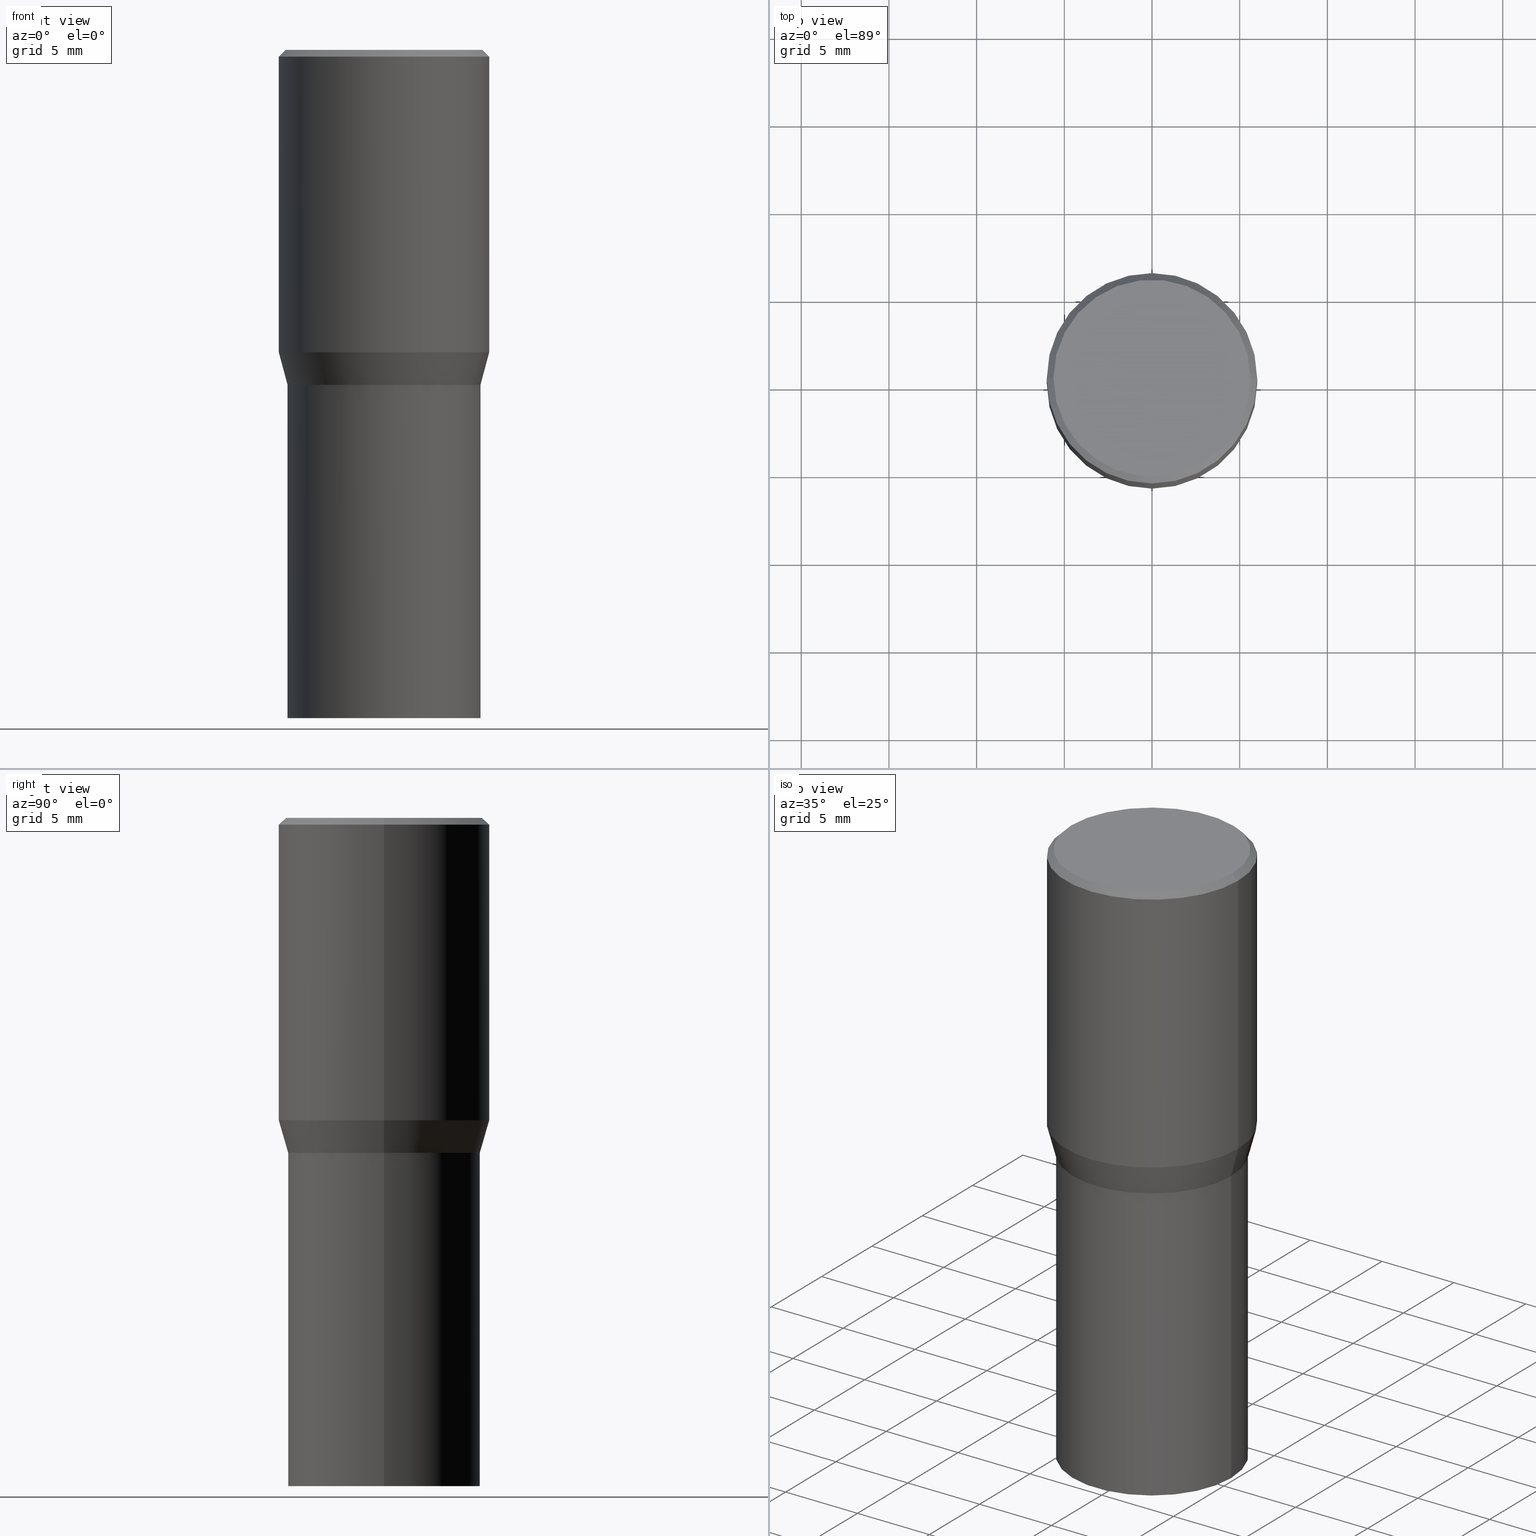
[diagram: canonical four-view strip — front | top / right | iso, engineering-drawing reading convention]
A machine part, canonical four-view strip (front | top / right | iso — engineering-drawing reading convention). The complete STEP part file that produces these views, byte-faithful:
ISO-10303-21;
HEADER;
FILE_DESCRIPTION (( 'STEP AP203' ),
    '1' );
FILE_NAME ('49318.STEP',
    '2024-03-12T20:13:07',
    ( '' ),
    ( '' ),
    'SwSTEP 2.0',
    'SolidWorks 2023',
    '' );
FILE_SCHEMA (( 'CONFIG_CONTROL_DESIGN' ));
ENDSEC;

DATA;
#1 = PRODUCT_DEFINITION ( 'UNKNOWN', '', #314, #178 ) ;
#2 = ORIENTED_EDGE ( 'NONE', *, *, #228, .T. ) ;
#3 = EDGE_CURVE ( 'NONE', #387, #332, #211, .T. ) ;
#4 = CARTESIAN_POINT ( 'NONE',  ( 0.2165500000000000203, -4.137754534663007109E-15, -0.7520000000000001128 ) ) ;
#5 = APPROVAL_PERSON_ORGANIZATION ( #142, #248, #191 ) ;
#6 = ORIENTED_EDGE ( 'NONE', *, *, #342, .T. ) ;
#7 = CARTESIAN_POINT ( 'NONE',  ( 1.838992542251222532E-29, -2.625593966810045103E-15, -0.7519999999999998908 ) ) ;
#8 = CARTESIAN_POINT ( 'NONE',  ( 1.659654580432621677E-29, -2.369546886817807077E-15, -0.6786652016312719748 ) ) ;
#9 = CYLINDRICAL_SURFACE ( 'NONE', #245, 0.2361999999999999933 ) ;
#10 = EDGE_CURVE ( 'NONE', #214, #246, #219, .T. ) ;
#11 = DIRECTION ( 'NONE',  ( 1.000000000000000000, -6.982962677686266711E-15, 0.000000000000000000 ) ) ;
#12 = ORIENTED_EDGE ( 'NONE', *, *, #47, .T. ) ;
#13 = DIRECTION ( 'NONE',  ( -2.445468806185136597E-29, 3.491481338843145583E-15, 1.000000000000000000 ) ) ;
#14 = DIRECTION ( 'NONE',  ( -2.445468806185136597E-29, 3.491481338843145583E-15, 1.000000000000000000 ) ) ;
#15 = VECTOR ( 'NONE', #172, 39.37007874015748143 ) ;
#16 = DIRECTION ( 'NONE',  ( -2.445468806185136597E-29, 3.491481338843145583E-15, 1.000000000000000000 ) ) ;
#17 = DIRECTION ( 'NONE',  ( 1.000000000000000000, -6.982962677686266711E-15, 0.000000000000000000 ) ) ;
#18 = EDGE_CURVE ( 'NONE', #201, #332, #113, .T. ) ;
#19 = EDGE_CURVE ( 'NONE', #72, #201, #102, .T. ) ;
#20 = CARTESIAN_POINT ( 'NONE',  ( -0.2165500000000000203, -1.086913672521548598E-15, -0.7520000000000001128 ) ) ;
#21 = ORIENTED_EDGE ( 'NONE', *, *, #125, .T. ) ;
#22 = PERSON_AND_ORGANIZATION ( #145, #455 ) ;
#23 = CLOSED_SHELL ( 'NONE', ( #218, #169, #227, #452 ) ) ;
#24 = CONICAL_SURFACE ( 'NONE', #279, 0.2160500000000000198, 0.7853981633977554777 ) ;
#25 = CALENDAR_DATE ( 2024, 12, 3 ) ;
#26 = FACE_OUTER_BOUND ( 'NONE', #357, .T. ) ;
#27 = EDGE_CURVE ( 'NONE', #310, #133, #130, .T. ) ;
#28 = FACE_OUTER_BOUND ( 'NONE', #439, .T. ) ;
#29 = CALENDAR_DATE ( 2024, 12, 3 ) ;
#30 = EDGE_CURVE ( 'NONE', #411, #424, #223, .T. ) ;
#31 = ORIENTED_EDGE ( 'NONE', *, *, #18, .F. ) ;
#32 = ADVANCED_FACE ( 'NONE', ( #28 ), #149, .T. ) ;
#33 =( NAMED_UNIT ( * ) SI_UNIT ( $, .STERADIAN. ) SOLID_ANGLE_UNIT ( ) );
#34 = DIRECTION ( 'NONE',  ( -2.445468806185136597E-29, 3.491481338843145583E-15, 1.000000000000000000 ) ) ;
#35 = AXIS2_PLACEMENT_3D ( 'NONE', #293, #123, #229 ) ;
#36 = AXIS2_PLACEMENT_3D ( 'NONE', #268, #456, #103 ) ;
#37 = CARTESIAN_POINT ( 'NONE',  ( -0.2361999999999999933, 1.678301941865356591E-15, -1.161852468318208757E-29 ) ) ;
#38 = ORIENTED_EDGE ( 'NONE', *, *, #83, .F. ) ;
#39 = ORIENTED_EDGE ( 'NONE', *, *, #148, .T. ) ;
#40 = AXIS2_PLACEMENT_3D ( 'NONE', #48, #390, #243 ) ;
#41 = VECTOR ( 'NONE', #385, 39.37007874015748143 ) ;
#42 = ORIENTED_EDGE ( 'NONE', *, *, #3, .F. ) ;
#43 = VECTOR ( 'NONE', #449, 39.37007874015748143 ) ;
#44 = CIRCLE ( 'NONE', #74, 0.2361999999999999933 ) ;
#45 = LOCAL_TIME ( 16, 13, 7.000000000000000000, #247 ) ;
#46 = APPLICATION_CONTEXT ( 'configuration controlled 3d designs of mechanical parts and assemblies' ) ;
#47 = EDGE_CURVE ( 'NONE', #95, #386, #311, .T. ) ;
#48 = CARTESIAN_POINT ( 'NONE',  ( -1.149724336312568549E-45, 1.641501643732376111E-31, 4.701447564592355584E-17 ) ) ;
#49 = EDGE_CURVE ( 'NONE', #391, #386, #429, .T. ) ;
#50 = ORIENTED_EDGE ( 'NONE', *, *, #27, .F. ) ;
#51 = AXIS2_PLACEMENT_3D ( 'NONE', #194, #418, #282 ) ;
#52 = ORIENTED_EDGE ( 'NONE', *, *, #68, .T. ) ;
#53 = CARTESIAN_POINT ( 'NONE',  ( 0.2165500000000001035, -1.512160567852961809E-15, 1.055936080798610456E-29 ) ) ;
#54 = CARTESIAN_POINT ( 'NONE',  ( 1.838992542251222813E-29, -2.625593966810045497E-15, -0.7520000000000001128 ) ) ;
#55 = FACE_OUTER_BOUND ( 'NONE', #320, .T. ) ;
#56 = AXIS2_PLACEMENT_3D ( 'NONE', #366, #291, #393 ) ;
#57 = FACE_OUTER_BOUND ( 'NONE', #359, .T. ) ;
#58 = CALENDAR_DATE ( 2024, 12, 3 ) ;
#59 = APPROVAL_ROLE ( '' ) ;
#60 = ORIENTED_EDGE ( 'NONE', *, *, #284, .T. ) ;
#61 = DIRECTION ( 'NONE',  ( -2.445468806185136597E-29, 3.491481338843145583E-15, 1.000000000000000000 ) ) ;
#62 = AXIS2_PLACEMENT_3D ( 'NONE', #296, #117, #17 ) ;
#63 = DIRECTION ( 'NONE',  ( 2.445468806185136597E-29, -3.491481338843145583E-15, -1.000000000000000000 ) ) ;
#64 = APPROVAL_DATE_TIME ( #407, #248 ) ;
#65 = ORIENTED_EDGE ( 'NONE', *, *, #132, .F. ) ;
#66 = ORIENTED_EDGE ( 'NONE', *, *, #410, .T. ) ;
#67 = ORIENTED_EDGE ( 'NONE', *, *, #170, .T. ) ;
#68 = EDGE_CURVE ( 'NONE', #214, #95, #111, .T. ) ;
#69 = CIRCLE ( 'NONE', #362, 0.2165500000000000203 ) ;
#70 = CYLINDRICAL_SURFACE ( 'NONE', #420, 0.2165500000000000203 ) ;
#71 = ORIENTED_EDGE ( 'NONE', *, *, #410, .F. ) ;
#72 = VERTEX_POINT ( 'NONE', #208 ) ;
#73 = CC_DESIGN_DATE_AND_TIME_ASSIGNMENT ( #307, #309, ( #288 ) ) ;
#74 = AXIS2_PLACEMENT_3D ( 'NONE', #375, #378, #262 ) ;
#75 = ORIENTED_EDGE ( 'NONE', *, *, #413, .F. ) ;
#76 = APPROVAL_PERSON_ORGANIZATION ( #365, #215, #464 ) ;
#77 = EDGE_CURVE ( 'NONE', #308, #270, #232, .T. ) ;
#78 = DIRECTION ( 'NONE',  ( 1.000000000000000000, -6.982962677686266711E-15, 0.000000000000000000 ) ) ;
#79 = UNCERTAINTY_MEASURE_WITH_UNIT (LENGTH_MEASURE( 1.000000000000000082E-05 ), #446, 'distance_accuracy_value', 'NONE');
#80 = PLANE ( 'NONE',  #56 ) ;
#81 = CARTESIAN_POINT ( 'NONE',  ( 1.659654580432621677E-29, -2.369546886817807077E-15, -0.6786652016312719748 ) ) ;
#82 = ORIENTED_EDGE ( 'NONE', *, *, #110, .F. ) ;
#83 = EDGE_CURVE ( 'NONE', #387, #310, #69, .T. ) ;
#84 = DIRECTION ( 'NONE',  ( -2.445468806185136597E-29, 3.491481338843145583E-15, 1.000000000000000000 ) ) ;
#85 = CARTESIAN_POINT ( 'NONE',  ( 0.2165500000000000203, -4.137754534663007109E-15, -0.7520000000000001128 ) ) ;
#86 = CYLINDRICAL_SURFACE ( 'NONE', #295, 0.2165500000000001035 ) ;
#87 = CARTESIAN_POINT ( 'NONE',  ( 0.2165500000000002145, -4.136008793993586394E-15, -0.7515000000000000568 ) ) ;
#88 = CC_DESIGN_DATE_AND_TIME_ASSIGNMENT ( #190, #346, ( #1 ) ) ;
#89 = CARTESIAN_POINT ( 'NONE',  ( 0.000000000000000000, 0.000000000000000000, 0.000000000000000000 ) ) ;
#90 = VECTOR ( 'NONE', #239, 39.37007874015748143 ) ;
#91 = LOCAL_TIME ( 16, 13, 7.000000000000000000, #230 ) ;
#92 = ORIENTED_EDGE ( 'NONE', *, *, #10, .F. ) ;
#93 = DIRECTION ( 'NONE',  ( 1.000000000000000000, -6.982962677686266711E-15, 0.000000000000000000 ) ) ;
#94 = PERSON_AND_ORGANIZATION ( #145, #455 ) ;
#95 = VERTEX_POINT ( 'NONE', #466 ) ;
#96 = PERSON_AND_ORGANIZATION ( #145, #455 ) ;
#97 = DIRECTION ( 'NONE',  ( 2.438088387897960049E-29, -3.491481338843145188E-15, -1.000000000000000000 ) ) ;
#98 = CIRCLE ( 'NONE', #35, 0.2165500000000000203 ) ;
#99 = DIRECTION ( 'NONE',  ( -2.445468806185136597E-29, 3.491481338843145583E-15, 1.000000000000000000 ) ) ;
#100 = PERSON_AND_ORGANIZATION_ROLE ( 'classification_officer' ) ;
#101 = DIRECTION ( 'NONE',  ( -0.7071067811865459074, 2.468850131082239706E-15, -0.7071067811865492381 ) ) ;
#102 = LINE ( 'NONE', #252, #256 ) ;
#103 = DIRECTION ( 'NONE',  ( 1.000000000000000000, 0.000000000000000000, 0.000000000000000000 ) ) ;
#104 = ORIENTED_EDGE ( 'NONE', *, *, #348, .T. ) ;
#105 = FACE_OUTER_BOUND ( 'NONE', #176, .T. ) ;
#106 = LINE ( 'NONE', #462, #114 ) ;
#107 = COORDINATED_UNIVERSAL_TIME_OFFSET ( 5, 0, .BEHIND. ) ;
#108 = VECTOR ( 'NONE', #260, 39.37007874015748143 ) ;
#109 = AXIS2_PLACEMENT_3D ( 'NONE', #189, #187, #436 ) ;
#110 = EDGE_CURVE ( 'NONE', #95, #214, #397, .T. ) ;
#111 = CIRCLE ( 'NONE', #40, 0.2212000000000000077 ) ;
#112 = DATE_AND_TIME ( #322, #45 ) ;
#113 = CIRCLE ( 'NONE', #376, 0.2165500000000002145 ) ;
#114 = VECTOR ( 'NONE', #432, 39.37007874015748143 ) ;
#115 = ORIENTED_EDGE ( 'NONE', *, *, #317, .F. ) ;
#116 = ORIENTED_EDGE ( 'NONE', *, *, #77, .F. ) ;
#117 = DIRECTION ( 'NONE',  ( -2.445468806185136597E-29, 3.491481338843145583E-15, 1.000000000000000000 ) ) ;
#118 = AXIS2_PLACEMENT_3D ( 'NONE', #445, #34, #388 ) ;
#119 = DIRECTION ( 'NONE',  ( 1.000000000000000000, -6.982962677686266711E-15, 0.000000000000000000 ) ) ;
#120 = CIRCLE ( 'NONE', #333, 0.2165500000000000203 ) ;
#121 = LOCAL_TIME ( 16, 13, 7.000000000000000000, #107 ) ;
#122 = DIRECTION ( 'NONE',  ( -1.000000000000000000, 6.982962677686265922E-15, -4.876176775795935793E-29 ) ) ;
#123 = DIRECTION ( 'NONE',  ( -2.445468806185136597E-29, 3.491481338843145583E-15, 1.000000000000000000 ) ) ;
#124 = FACE_OUTER_BOUND ( 'NONE', #202, .T. ) ;
#125 = EDGE_CURVE ( 'NONE', #72, #417, #377, .T. ) ;
#126 = DIRECTION ( 'NONE',  ( 0.7071067811867647324, -2.468850131084532135E-15, 0.7071067811863303021 ) ) ;
#127 = DIRECTION ( 'NONE',  ( 1.000000000000000000, -6.982962677686264344E-15, 0.000000000000000000 ) ) ;
#128 = CIRCLE ( 'NONE', #62, 0.2165500000000002145 ) ;
#129 = CC_DESIGN_APPROVAL ( #361, ( #314 ) ) ;
#130 = LINE ( 'NONE', #4, #323 ) ;
#131 = PERSON_AND_ORGANIZATION_ROLE ( 'design_supplier' ) ;
#132 = EDGE_CURVE ( 'NONE', #417, #332, #412, .T. ) ;
#133 = VERTEX_POINT ( 'NONE', #275 ) ;
#134 = DIRECTION ( 'NONE',  ( -2.445468806185136597E-29, 3.491481338843145583E-15, 1.000000000000000000 ) ) ;
#135 = CARTESIAN_POINT ( 'NONE',  ( 0.2361999999999999933, -1.649375784469496131E-15, 1.151752954443000088E-29 ) ) ;
#136 = APPROVAL_STATUS ( 'not_yet_approved' ) ;
#137 = CARTESIAN_POINT ( 'NONE',  ( 1.544631344304202170E-15, 0.2212000000000000077, -7.488084343291421542E-16 ) ) ;
#138 = CARTESIAN_POINT ( 'NONE',  ( 1.837769807848130011E-29, -2.623848226140623599E-15, -0.7515000000000000568 ) ) ;
#139 = EDGE_LOOP ( 'NONE', ( #92, #82, #12, #6 ) ) ;
#140 = CARTESIAN_POINT ( 'NONE',  ( 1.838992542251222532E-29, -2.625593966810045103E-15, -0.7519999999999998908 ) ) ;
#141 = ORIENTED_EDGE ( 'NONE', *, *, #19, .F. ) ;
#142 = PERSON_AND_ORGANIZATION ( #145, #455 ) ;
#143 = ADVANCED_FACE ( 'NONE', ( #105 ), #427, .T. ) ;
#144 = ORIENTED_EDGE ( 'NONE', *, *, #77, .T. ) ;
#145 = PERSON ( 'UNSPECIFIED', 'UNSPECIFIED', 'UNSPECIFIED', ('UNSPECIFIED'), ('UNSPECIFIED'), ('UNSPECIFIED') ) ;
#146 = AXIS2_PLACEMENT_3D ( 'NONE', #280, #63, #198 ) ;
#147 = DIRECTION ( 'NONE',  ( -2.445468806185136597E-29, 3.491481338843145583E-15, 1.000000000000000000 ) ) ;
#148 = EDGE_CURVE ( 'NONE', #391, #133, #349, .T. ) ;
#149 = CONICAL_SURFACE ( 'NONE', #146, 0.2361999999999999933, 0.7853981633974459475 ) ;
#150 = AXIS2_PLACEMENT_3D ( 'NONE', #265, #403, #345 ) ;
#151 = EDGE_LOOP ( 'NONE', ( #336, #441 ) ) ;
#152 = CARTESIAN_POINT ( 'NONE',  ( -0.2165500000000000203, 1.538680294288497096E-15, -1.065195393794699923E-29 ) ) ;
#153 = EDGE_LOOP ( 'NONE', ( #144, #60 ) ) ;
#154 = DIRECTION ( 'NONE',  ( -2.445468806185136597E-29, 3.491481338843145583E-15, 1.000000000000000000 ) ) ;
#155 = ADVANCED_FACE ( 'NONE', ( #294 ), #161, .F. ) ;
#156 = DIRECTION ( 'NONE',  ( 1.000000000000000000, -6.982962677686266711E-15, 0.000000000000000000 ) ) ;
#157 = CC_DESIGN_PERSON_AND_ORGANIZATION_ASSIGNMENT ( #196, #416, ( #1 ) ) ;
#158 = ORIENTED_EDGE ( 'NONE', *, *, #159, .T. ) ;
#159 = EDGE_CURVE ( 'NONE', #310, #387, #120, .T. ) ;
#160 = DIRECTION ( 'NONE',  ( 1.000000000000000000, -6.982962677686266711E-15, 4.876176775795935793E-29 ) ) ;
#161 = CYLINDRICAL_SURFACE ( 'NONE', #150, 0.2165500000000001035 ) ;
#162 = DIRECTION ( 'NONE',  ( -2.445468806185136597E-29, 3.491481338843145583E-15, 1.000000000000000000 ) ) ;
#163 = APPROVAL_STATUS ( 'not_yet_approved' ) ;
#164 = EDGE_CURVE ( 'NONE', #417, #72, #461, .T. ) ;
#165 = CONICAL_SURFACE ( 'NONE', #304, 0.2165500000000000203, 0.2617993877991505736 ) ;
#166 = APPLICATION_PROTOCOL_DEFINITION ( 'international standard', 'config_control_design', 1994, #306 ) ;
#167 = APPROVAL_DATE_TIME ( #350, #361 ) ;
#168 = ORIENTED_EDGE ( 'NONE', *, *, #159, .F. ) ;
#169 = ADVANCED_FACE ( 'NONE', ( #394 ), #80, .F. ) ;
#170 = EDGE_CURVE ( 'NONE', #133, #246, #192, .T. ) ;
#171 = AXIS2_PLACEMENT_3D ( 'NONE', #338, #16, #389 ) ;
#172 = DIRECTION ( 'NONE',  ( -0.7071067811867647324, 7.493145998871139866E-15, 0.7071067811863303021 ) ) ;
#173 = CC_DESIGN_SECURITY_CLASSIFICATION ( #288, ( #314 ) ) ;
#174 = DIRECTION ( 'NONE',  ( 1.000000000000000000, -6.982962677686266711E-15, 0.000000000000000000 ) ) ;
#175 = ORIENTED_EDGE ( 'NONE', *, *, #83, .T. ) ;
#176 = EDGE_LOOP ( 'NONE', ( #158, #253, #447, #50 ) ) ;
#177 = ORIENTED_EDGE ( 'NONE', *, *, #228, .F. ) ;
#178 = DESIGN_CONTEXT ( 'detailed design', #46, 'design' ) ;
#179 = CARTESIAN_POINT ( 'NONE',  ( 1.838992542251222813E-29, -2.625593966810045497E-15, -0.7520000000000001128 ) ) ;
#180 = DIRECTION ( 'NONE',  ( -2.445468806185136597E-29, 3.491481338843145583E-15, 1.000000000000000000 ) ) ;
#181 = APPROVAL_DATE_TIME ( #112, #215 ) ;
#182 = AXIS2_PLACEMENT_3D ( 'NONE', #460, #99, #423 ) ;
#183 = PLANE ( 'NONE',  #233 ) ;
#184 = DIRECTION ( 'NONE',  ( -2.445468806185136877E-29, 3.491481338843145188E-15, 1.000000000000000000 ) ) ;
#185 = CC_DESIGN_PERSON_AND_ORGANIZATION_ASSIGNMENT ( #94, #100, ( #288 ) ) ;
#186 = DIRECTION ( 'NONE',  ( -2.445468806185136597E-29, 3.491481338843145583E-15, 1.000000000000000000 ) ) ;
#187 = DIRECTION ( 'NONE',  ( 2.438088387897960049E-29, -3.491481338843145188E-15, -1.000000000000000000 ) ) ;
#188 = DIRECTION ( 'NONE',  ( 1.000000000000000000, -6.982962677686266711E-15, 0.000000000000000000 ) ) ;
#189 = CARTESIAN_POINT ( 'NONE',  ( 1.512160567852979361E-15, 0.2165499999999973835, -0.7520000000000008900 ) ) ;
#190 = DATE_AND_TIME ( #242, #121 ) ;
#191 = APPROVAL_ROLE ( '' ) ;
#192 = LINE ( 'NONE', #135, #90 ) ;
#193 = AXIS2_PLACEMENT_3D ( 'NONE', #179, #180, #465 ) ;
#194 = CARTESIAN_POINT ( 'NONE',  ( 3.668203209277705088E-31, -5.237222008264718399E-17, -0.01499999999999999944 ) ) ;
#195 = CARTESIAN_POINT ( 'NONE',  ( -0.2361999999999999933, 1.597003564386848854E-15, -0.01499999999999999944 ) ) ;
#196 = PERSON_AND_ORGANIZATION ( #145, #455 ) ;
#197 = ADVANCED_FACE ( 'NONE', ( #203 ), #347, .F. ) ;
#198 = DIRECTION ( 'NONE',  ( -1.000000000000000000, 6.982962677686266711E-15, 0.000000000000000000 ) ) ;
#199 =( LENGTH_UNIT ( ) NAMED_UNIT ( * ) SI_UNIT ( $, .METRE. ) );
#200 = ADVANCED_BREP_SHAPE_REPRESENTATION ( '49318', ( #430, #269, #36 ), #259 ) ;
#201 = VERTEX_POINT ( 'NONE', #87 ) ;
#202 = EDGE_LOOP ( 'NONE', ( #21, #358, #31, #141 ) ) ;
#203 = FACE_OUTER_BOUND ( 'NONE', #425, .T. ) ;
#204 = ORIENTED_EDGE ( 'NONE', *, *, #30, .T. ) ;
#205 = CIRCLE ( 'NONE', #453, 0.2361999999999999933 ) ;
#206 = EDGE_LOOP ( 'NONE', ( #42, #168, #66, #326 ) ) ;
#207 = DIRECTION ( 'NONE',  ( 0.2588190451025218497, 1.565188264969618221E-15, 0.9659258262890679791 ) ) ;
#208 = CARTESIAN_POINT ( 'NONE',  ( 0.2160500000000000198, -4.134263053324163313E-15, -0.7519999999999998908 ) ) ;
#209 = ORIENTED_EDGE ( 'NONE', *, *, #315, .T. ) ;
#210 = AXIS2_PLACEMENT_3D ( 'NONE', #364, #451, #353 ) ;
#211 = LINE ( 'NONE', #330, #396 ) ;
#212 = ADVANCED_FACE ( 'NONE', ( #343 ), #9, .T. ) ;
#213 = EDGE_LOOP ( 'NONE', ( #234, #444 ) ) ;
#214 = VERTEX_POINT ( 'NONE', #351 ) ;
#215 = APPROVAL ( #327, 'UNSPECIFIED' ) ;
#216 = ORIENTED_EDGE ( 'NONE', *, *, #49, .F. ) ;
#217 = DIRECTION ( 'NONE',  ( 1.000000000000000000, -6.982962677686265922E-15, 4.876176775795935793E-29 ) ) ;
#218 = ADVANCED_FACE ( 'NONE', ( #26 ), #454, .T. ) ;
#219 = LINE ( 'NONE', #443, #43 ) ;
#220 = DIRECTION ( 'NONE',  ( -2.445468806185136877E-29, 3.491481338843145188E-15, 1.000000000000000000 ) ) ;
#221 = ORIENTED_EDGE ( 'NONE', *, *, #148, .F. ) ;
#222 = DIRECTION ( 'NONE',  ( -2.445468806185136597E-29, 3.491481338843145583E-15, 1.000000000000000000 ) ) ;
#223 = CIRCLE ( 'NONE', #118, 0.2165500000000000203 ) ;
#224 = LINE ( 'NONE', #20, #108 ) ;
#225 = CONICAL_SURFACE ( 'NONE', #51, 0.2361999999999999933, 0.7853981633974459475 ) ;
#226 = CC_DESIGN_APPROVAL ( #215, ( #288 ) ) ;
#227 = ADVANCED_FACE ( 'NONE', ( #415 ), #70, .T. ) ;
#228 = EDGE_CURVE ( 'NONE', #424, #308, #106, .T. ) ;
#229 = DIRECTION ( 'NONE',  ( 1.000000000000000000, -6.982962677686266711E-15, 0.000000000000000000 ) ) ;
#230 = COORDINATED_UNIVERSAL_TIME_OFFSET ( 5, 0, .BEHIND. ) ;
#231 = COORDINATED_UNIVERSAL_TIME_OFFSET ( 5, 0, .BEHIND. ) ;
#232 = CIRCLE ( 'NONE', #193, 0.2165500000000000203 ) ;
#233 = AXIS2_PLACEMENT_3D ( 'NONE', #54, #335, #217 ) ;
#234 = ORIENTED_EDGE ( 'NONE', *, *, #315, .F. ) ;
#235 = CC_DESIGN_PERSON_AND_ORGANIZATION_ASSIGNMENT ( #409, #355, ( #289 ) ) ;
#236 =( NAMED_UNIT ( * ) PLANE_ANGLE_UNIT ( ) SI_UNIT ( $, .RADIAN. ) );
#237 = ADVANCED_FACE ( 'NONE', ( #258 ), #225, .T. ) ;
#238 = MECHANICAL_CONTEXT ( 'NONE', #306, 'mechanical' ) ;
#239 = DIRECTION ( 'NONE',  ( -2.445468806185136877E-29, 3.491481338843145188E-15, 1.000000000000000000 ) ) ;
#240 = ORIENTED_EDGE ( 'NONE', *, *, #164, .T. ) ;
#241 = CARTESIAN_POINT ( 'NONE',  ( 1.838992542251222813E-29, -2.625593966810045497E-15, -0.7520000000000001128 ) ) ;
#242 = CALENDAR_DATE ( 2024, 12, 3 ) ;
#243 = DIRECTION ( 'NONE',  ( 1.000000000000000000, -6.982962677686267499E-15, 4.877828720335458505E-29 ) ) ;
#244 = EDGE_LOOP ( 'NONE', ( #216, #39, #67, #283 ) ) ;
#245 = AXIS2_PLACEMENT_3D ( 'NONE', #399, #14, #381 ) ;
#246 = VERTEX_POINT ( 'NONE', #450 ) ;
#247 = COORDINATED_UNIVERSAL_TIME_OFFSET ( 5, 0, .BEHIND. ) ;
#248 = APPROVAL ( #136, 'UNSPECIFIED' ) ;
#249 = APPROVAL_PERSON_ORGANIZATION ( #96, #361, #59 ) ;
#250 = DIRECTION ( 'NONE',  ( 1.000000000000000000, -6.982962677686266711E-15, 0.000000000000000000 ) ) ;
#251 = DIRECTION ( 'NONE',  ( -2.445468806185136597E-29, 3.491481338843145583E-15, 1.000000000000000000 ) ) ;
#252 = CARTESIAN_POINT ( 'NONE',  ( 0.2160500000000000198, -4.134263053324163313E-15, -0.7519999999999998908 ) ) ;
#253 = ORIENTED_EDGE ( 'NONE', *, *, #367, .T. ) ;
#254 = CARTESIAN_POINT ( 'NONE',  ( -0.2165500000000002145, -1.085167931852125319E-15, -0.7515000000000000568 ) ) ;
#255 = PRODUCT_RELATED_PRODUCT_CATEGORY ( 'detail', '', ( #289 ) ) ;
#256 = VECTOR ( 'NONE', #126, 39.37007874015748143 ) ;
#257 = AXIS2_PLACEMENT_3D ( 'NONE', #341, #162, #127 ) ;
#258 = FACE_OUTER_BOUND ( 'NONE', #139, .T. ) ;
#259 =( GEOMETRIC_REPRESENTATION_CONTEXT ( 3 ) GLOBAL_UNCERTAINTY_ASSIGNED_CONTEXT ( ( #79 ) ) GLOBAL_UNIT_ASSIGNED_CONTEXT ( ( #446, #236, #33 ) ) REPRESENTATION_CONTEXT ( 'NONE', 'WORKASPACE' ) );
#260 = DIRECTION ( 'NONE',  ( -0.2588190451025218497, 5.211531920934553408E-15, 0.9659258262890679791 ) ) ;
#261 = ORIENTED_EDGE ( 'NONE', *, *, #19, .T. ) ;
#262 = DIRECTION ( 'NONE',  ( 1.000000000000000000, -6.982962677686266711E-15, 0.000000000000000000 ) ) ;
#263 = CARTESIAN_POINT ( 'NONE',  ( -0.2361999999999999933, 4.673423884151294145E-16, -0.01499999999999999944 ) ) ;
#264 = CARTESIAN_POINT ( 'NONE',  ( 0.000000000000000000, 0.000000000000000000, 0.000000000000000000 ) ) ;
#265 = CARTESIAN_POINT ( 'NONE',  ( 0.000000000000000000, 0.000000000000000000, 0.000000000000000000 ) ) ;
#266 = CARTESIAN_POINT ( 'NONE',  ( -0.2361999999999999933, -6.912449449524502887E-16, -0.6786652016312719748 ) ) ;
#267 = AXIS2_PLACEMENT_3D ( 'NONE', #8, #371, #93 ) ;
#268 = CARTESIAN_POINT ( 'NONE',  ( 0.000000000000000000, 0.000000000000000000, 0.000000000000000000 ) ) ;
#269 = MANIFOLD_SOLID_BREP ( 'Body-Move/Copy2[2]', #434 ) ;
#270 = VERTEX_POINT ( 'NONE', #324 ) ;
#271 = CC_DESIGN_PERSON_AND_ORGANIZATION_ASSIGNMENT ( #442, #131, ( #314 ) ) ;
#272 = AXIS2_PLACEMENT_3D ( 'NONE', #89, #84, #339 ) ;
#273 = DIRECTION ( 'NONE',  ( 1.000000000000000000, -6.982962677686266711E-15, 0.000000000000000000 ) ) ;
#274 = EDGE_LOOP ( 'NONE', ( #104, #285, #75, #368 ) ) ;
#275 = CARTESIAN_POINT ( 'NONE',  ( 0.2361999999999999933, -4.018922671287303208E-15, -0.6786652016312719748 ) ) ;
#276 = ADVANCED_FACE ( 'NONE', ( #459 ), #183, .F. ) ;
#277 = COORDINATED_UNIVERSAL_TIME_OFFSET ( 5, 0, .BEHIND. ) ;
#278 = ORIENTED_EDGE ( 'NONE', *, *, #27, .T. ) ;
#279 = AXIS2_PLACEMENT_3D ( 'NONE', #140, #134, #174 ) ;
#280 = CARTESIAN_POINT ( 'NONE',  ( 3.668203209277705088E-31, -5.237222008264718399E-17, -0.01499999999999999944 ) ) ;
#281 = DIRECTION ( 'NONE',  ( 1.000000000000000000, -6.982962677686266711E-15, 0.000000000000000000 ) ) ;
#282 = DIRECTION ( 'NONE',  ( -1.000000000000000000, 6.982962677686266711E-15, 0.000000000000000000 ) ) ;
#283 = ORIENTED_EDGE ( 'NONE', *, *, #342, .F. ) ;
#284 = EDGE_CURVE ( 'NONE', #270, #308, #98, .T. ) ;
#285 = ORIENTED_EDGE ( 'NONE', *, *, #49, .T. ) ;
#286 = ORIENTED_EDGE ( 'NONE', *, *, #317, .T. ) ;
#287 = VECTOR ( 'NONE', #220, 39.37007874015748143 ) ;
#288 = SECURITY_CLASSIFICATION ( '', '', #406 ) ;
#289 = PRODUCT ( '49318', '49318', '', ( #238 ) ) ;
#290 = DIRECTION ( 'NONE',  ( -2.445468806185136597E-29, 3.491481338843145583E-15, 1.000000000000000000 ) ) ;
#291 = DIRECTION ( 'NONE',  ( -2.438088387897960049E-29, 3.491481338843145188E-15, 1.000000000000000000 ) ) ;
#292 = CARTESIAN_POINT ( 'NONE',  ( 0.000000000000000000, 0.000000000000000000, 0.000000000000000000 ) ) ;
#293 = CARTESIAN_POINT ( 'NONE',  ( 1.838992542251222813E-29, -2.625593966810045497E-15, -0.7520000000000001128 ) ) ;
#294 = FACE_OUTER_BOUND ( 'NONE', #206, .T. ) ;
#295 = AXIS2_PLACEMENT_3D ( 'NONE', #292, #222, #160 ) ;
#296 = CARTESIAN_POINT ( 'NONE',  ( 1.837769807848130011E-29, -2.623848226140623599E-15, -0.7515000000000000568 ) ) ;
#297 = ORIENTED_EDGE ( 'NONE', *, *, #10, .T. ) ;
#298 = DIRECTION ( 'NONE',  ( 1.000000000000000000, -6.982962677686266711E-15, 0.000000000000000000 ) ) ;
#299 = PLANE ( 'NONE',  #109 ) ;
#300 = CC_DESIGN_PERSON_AND_ORGANIZATION_ASSIGNMENT ( #22, #303, ( #314 ) ) ;
#301 = CARTESIAN_POINT ( 'NONE',  ( 1.838992542251222532E-29, -2.625593966810045103E-15, -0.7519999999999998908 ) ) ;
#302 = ORIENTED_EDGE ( 'NONE', *, *, #47, .F. ) ;
#303 = PERSON_AND_ORGANIZATION_ROLE ( 'creator' ) ;
#304 = AXIS2_PLACEMENT_3D ( 'NONE', #373, #13, #156 ) ;
#305 = LOCAL_TIME ( 16, 13, 7.000000000000000000, #277 ) ;
#306 = APPLICATION_CONTEXT ( 'configuration controlled 3d designs of mechanical parts and assemblies' ) ;
#307 = DATE_AND_TIME ( #25, #91 ) ;
#308 = VERTEX_POINT ( 'NONE', #344 ) ;
#309 = DATE_TIME_ROLE ( 'classification_date' ) ;
#310 = VERTEX_POINT ( 'NONE', #85 ) ;
#311 = LINE ( 'NONE', #195, #354 ) ;
#312 = CARTESIAN_POINT ( 'NONE',  ( 1.838992542251222813E-29, -2.625593966810045497E-15, -0.7520000000000001128 ) ) ;
#313 = CIRCLE ( 'NONE', #257, 0.2165500000000000203 ) ;
#314 = PRODUCT_DEFINITION_FORMATION_WITH_SPECIFIED_SOURCE ( 'ANY', '', #289, .NOT_KNOWN. ) ;
#315 = EDGE_CURVE ( 'NONE', #424, #411, #313, .T. ) ;
#316 = ORIENTED_EDGE ( 'NONE', *, *, #421, .F. ) ;
#317 = EDGE_CURVE ( 'NONE', #332, #201, #128, .T. ) ;
#318 = ADVANCED_FACE ( 'NONE', ( #435 ), #433, .T. ) ;
#319 = ORIENTED_EDGE ( 'NONE', *, *, #367, .F. ) ;
#320 = EDGE_LOOP ( 'NONE', ( #38, #422, #286, #71 ) ) ;
#321 = ORIENTED_EDGE ( 'NONE', *, *, #68, .F. ) ;
#322 = CALENDAR_DATE ( 2024, 12, 3 ) ;
#323 = VECTOR ( 'NONE', #207, 39.37007874015748143 ) ;
#324 = CARTESIAN_POINT ( 'NONE',  ( -0.2165500000000000203, -2.392727693248884740E-15, -0.7520000000000001128 ) ) ;
#325 = DIRECTION ( 'NONE',  ( 1.000000000000000000, -6.982962677686266711E-15, 4.876176775795935793E-29 ) ) ;
#326 = ORIENTED_EDGE ( 'NONE', *, *, #18, .T. ) ;
#327 = APPROVAL_STATUS ( 'not_yet_approved' ) ;
#328 = DIRECTION ( 'NONE',  ( -2.445468806185136597E-29, 3.491481338843145583E-15, 1.000000000000000000 ) ) ;
#329 = DIRECTION ( 'NONE',  ( -2.445468806185136877E-29, 3.491481338843145188E-15, 1.000000000000000000 ) ) ;
#330 = CARTESIAN_POINT ( 'NONE',  ( -0.2165500000000001035, 1.538680294288497688E-15, -1.065195393794700483E-29 ) ) ;
#331 = DIRECTION ( 'NONE',  ( -2.445468806185136597E-29, 3.491481338843145583E-15, 1.000000000000000000 ) ) ;
#332 = VERTEX_POINT ( 'NONE', #254 ) ;
#333 = AXIS2_PLACEMENT_3D ( 'NONE', #360, #290, #78 ) ;
#334 = CC_DESIGN_APPROVAL ( #248, ( #1 ) ) ;
#335 = DIRECTION ( 'NONE',  ( -2.438088387897960049E-29, 3.491481338843145188E-15, 1.000000000000000000 ) ) ;
#336 = ORIENTED_EDGE ( 'NONE', *, *, #125, .F. ) ;
#337 = CARTESIAN_POINT ( 'NONE',  ( -0.2165500000000000203, -2.392727693248884740E-15, -1.500000000000000222 ) ) ;
#338 = CARTESIAN_POINT ( 'NONE',  ( 0.000000000000000000, 0.000000000000000000, 0.000000000000000000 ) ) ;
#339 = DIRECTION ( 'NONE',  ( 1.000000000000000000, -6.982962677686266711E-15, 4.876176775795936353E-29 ) ) ;
#340 = CIRCLE ( 'NONE', #267, 0.2361999999999999933 ) ;
#341 = CARTESIAN_POINT ( 'NONE',  ( 3.668203209277704895E-29, -5.237222008264718177E-15, -1.500000000000000222 ) ) ;
#342 = EDGE_CURVE ( 'NONE', #386, #246, #44, .T. ) ;
#343 = FACE_OUTER_BOUND ( 'NONE', #274, .T. ) ;
#344 = CARTESIAN_POINT ( 'NONE',  ( 0.2165500000000000203, -4.137754534663007109E-15, -0.7520000000000001128 ) ) ;
#345 = DIRECTION ( 'NONE',  ( 1.000000000000000000, -6.982962677686266711E-15, 4.876176775795935793E-29 ) ) ;
#346 = DATE_TIME_ROLE ( 'creation_date' ) ;
#347 = PLANE ( 'NONE',  #392 ) ;
#348 = EDGE_CURVE ( 'NONE', #133, #391, #340, .T. ) ;
#349 = CIRCLE ( 'NONE', #408, 0.2361999999999999933 ) ;
#350 = DATE_AND_TIME ( #29, #370 ) ;
#351 = CARTESIAN_POINT ( 'NONE',  ( 0.2212000000000000077, -1.595182002131672613E-15, 4.701447564593453210E-17 ) ) ;
#352 = ORIENTED_EDGE ( 'NONE', *, *, #421, .T. ) ;
#353 = DIRECTION ( 'NONE',  ( 1.000000000000000000, -6.982962677686267499E-15, 4.877828720335458505E-29 ) ) ;
#354 = VECTOR ( 'NONE', #101, 39.37007874015748143 ) ;
#355 = PERSON_AND_ORGANIZATION_ROLE ( 'design_owner' ) ;
#356 = CONICAL_SURFACE ( 'NONE', #404, 0.2160500000000000198, 0.7853981633977554777 ) ;
#357 = EDGE_LOOP ( 'NONE', ( #209, #352, #116, #177 ) ) ;
#358 = ORIENTED_EDGE ( 'NONE', *, *, #132, .T. ) ;
#359 = EDGE_LOOP ( 'NONE', ( #65, #240, #261, #115 ) ) ;
#360 = CARTESIAN_POINT ( 'NONE',  ( 1.838992542251222813E-29, -2.625593966810045497E-15, -0.7520000000000001128 ) ) ;
#361 = APPROVAL ( #163, 'UNSPECIFIED' ) ;
#362 = AXIS2_PLACEMENT_3D ( 'NONE', #312, #147, #281 ) ;
#363 = SHAPE_DEFINITION_REPRESENTATION ( #426, #200 ) ;
#364 = CARTESIAN_POINT ( 'NONE',  ( -1.149724336312568549E-45, 1.641501643732376111E-31, 4.701447564592355584E-17 ) ) ;
#365 = PERSON_AND_ORGANIZATION ( #145, #455 ) ;
#366 = CARTESIAN_POINT ( 'NONE',  ( 3.576687321579069994E-29, -5.368277968210015545E-15, -1.500000000000000222 ) ) ;
#367 = EDGE_CURVE ( 'NONE', #387, #391, #224, .T. ) ;
#368 = ORIENTED_EDGE ( 'NONE', *, *, #170, .F. ) ;
#369 = AXIS2_PLACEMENT_3D ( 'NONE', #7, #251, #250 ) ;
#370 = LOCAL_TIME ( 16, 13, 7.000000000000000000, #231 ) ;
#371 = DIRECTION ( 'NONE',  ( -2.445468806185136597E-29, 3.491481338843145583E-15, 1.000000000000000000 ) ) ;
#372 = DIRECTION ( 'NONE',  ( -2.445468806185136597E-29, 3.491481338843145583E-15, 1.000000000000000000 ) ) ;
#373 = CARTESIAN_POINT ( 'NONE',  ( 1.838992542251222813E-29, -2.625593966810045497E-15, -0.7520000000000001128 ) ) ;
#374 = ADVANCED_FACE ( 'NONE', ( #57 ), #356, .T. ) ;
#375 = CARTESIAN_POINT ( 'NONE',  ( 3.668203209277705088E-31, -5.237222008264718399E-17, -0.01499999999999999944 ) ) ;
#376 = AXIS2_PLACEMENT_3D ( 'NONE', #138, #61, #273 ) ;
#377 = CIRCLE ( 'NONE', #182, 0.2160500000000000198 ) ;
#378 = DIRECTION ( 'NONE',  ( -2.445468806185136597E-29, 3.491481338843145583E-15, 1.000000000000000000 ) ) ;
#379 = LINE ( 'NONE', #152, #287 ) ;
#380 = APPLICATION_PROTOCOL_DEFINITION ( 'international standard', 'config_control_design', 1994, #46 ) ;
#381 = DIRECTION ( 'NONE',  ( 1.000000000000000000, -6.982962677686266711E-15, 4.876176775795936353E-29 ) ) ;
#382 = VECTOR ( 'NONE', #184, 39.37007874015748143 ) ;
#383 = LENGTH_MEASURE_WITH_UNIT ( LENGTH_MEASURE( 0.02539999999999999897 ), #199 );
#384 = CARTESIAN_POINT ( 'NONE',  ( -0.2160500000000000198, -1.090466386200348708E-15, -0.7519999999999998908 ) ) ;
#385 = DIRECTION ( 'NONE',  ( -2.445468806185136877E-29, 3.491481338843145188E-15, 1.000000000000000000 ) ) ;
#386 = VERTEX_POINT ( 'NONE', #263 ) ;
#387 = VERTEX_POINT ( 'NONE', #437 ) ;
#388 = DIRECTION ( 'NONE',  ( 1.000000000000000000, -6.982962677686264344E-15, 0.000000000000000000 ) ) ;
#389 = DIRECTION ( 'NONE',  ( 1.000000000000000000, -6.982962677686266711E-15, 4.876176775795935793E-29 ) ) ;
#390 = DIRECTION ( 'NONE',  ( -2.445468806185136597E-29, 3.491481338843145583E-15, 1.000000000000000000 ) ) ;
#391 = VERTEX_POINT ( 'NONE', #266 ) ;
#392 = AXIS2_PLACEMENT_3D ( 'NONE', #137, #97, #122 ) ;
#393 = DIRECTION ( 'NONE',  ( 1.000000000000000000, -6.982962677686265922E-15, 4.876176775795935793E-29 ) ) ;
#394 = FACE_OUTER_BOUND ( 'NONE', #213, .T. ) ;
#395 = FACE_OUTER_BOUND ( 'NONE', #457, .T. ) ;
#396 = VECTOR ( 'NONE', #329, 39.37007874015748143 ) ;
#397 = CIRCLE ( 'NONE', #210, 0.2212000000000000077 ) ;
#398 = CARTESIAN_POINT ( 'NONE',  ( -0.2160500000000000198, -1.087817159026237112E-15, -0.7519999999999998908 ) ) ;
#399 = CARTESIAN_POINT ( 'NONE',  ( 0.000000000000000000, 0.000000000000000000, 0.000000000000000000 ) ) ;
#400 = CARTESIAN_POINT ( 'NONE',  ( 3.668203209277705088E-31, -5.237222008264718399E-17, -0.01499999999999999944 ) ) ;
#401 = DIMENSIONAL_EXPONENTS ( 1.000000000000000000, 0.000000000000000000, 0.000000000000000000, 0.000000000000000000, 0.000000000000000000, 0.000000000000000000, 0.000000000000000000 ) ;
#402 = FACE_OUTER_BOUND ( 'NONE', #153, .T. ) ;
#403 = DIRECTION ( 'NONE',  ( -2.445468806185136597E-29, 3.491481338843145583E-15, 1.000000000000000000 ) ) ;
#404 = AXIS2_PLACEMENT_3D ( 'NONE', #301, #186, #11 ) ;
#405 = LINE ( 'NONE', #53, #382 ) ;
#406 = SECURITY_CLASSIFICATION_LEVEL ( 'unclassified' ) ;
#407 = DATE_AND_TIME ( #58, #305 ) ;
#408 = AXIS2_PLACEMENT_3D ( 'NONE', #81, #372, #298 ) ;
#409 = PERSON_AND_ORGANIZATION ( #145, #455 ) ;
#410 = EDGE_CURVE ( 'NONE', #310, #201, #405, .T. ) ;
#411 = VERTEX_POINT ( 'NONE', #337 ) ;
#412 = LINE ( 'NONE', #384, #15 ) ;
#413 = EDGE_CURVE ( 'NONE', #246, #386, #205, .T. ) ;
#414 = ORIENTED_EDGE ( 'NONE', *, *, #110, .T. ) ;
#415 = FACE_OUTER_BOUND ( 'NONE', #431, .T. ) ;
#416 = PERSON_AND_ORGANIZATION_ROLE ( 'creator' ) ;
#417 = VERTEX_POINT ( 'NONE', #398 ) ;
#418 = DIRECTION ( 'NONE',  ( 2.445468806185136597E-29, -3.491481338843145583E-15, -1.000000000000000000 ) ) ;
#419 = ORIENTED_EDGE ( 'NONE', *, *, #284, .F. ) ;
#420 = AXIS2_PLACEMENT_3D ( 'NONE', #264, #331, #325 ) ;
#421 = EDGE_CURVE ( 'NONE', #411, #270, #379, .T. ) ;
#422 = ORIENTED_EDGE ( 'NONE', *, *, #3, .T. ) ;
#423 = DIRECTION ( 'NONE',  ( 1.000000000000000000, -6.982962677686266711E-15, 0.000000000000000000 ) ) ;
#424 = VERTEX_POINT ( 'NONE', #428 ) ;
#425 = EDGE_LOOP ( 'NONE', ( #414, #52 ) ) ;
#426 = PRODUCT_DEFINITION_SHAPE ( 'NONE', 'NONE',  #1 ) ;
#427 = CONICAL_SURFACE ( 'NONE', #440, 0.2165500000000000203, 0.2617993877991505736 ) ;
#428 = CARTESIAN_POINT ( 'NONE',  ( 0.2165500000000000203, -6.749382576117678999E-15, -1.500000000000000222 ) ) ;
#429 = LINE ( 'NONE', #37, #41 ) ;
#430 = MANIFOLD_SOLID_BREP ( 'Body-Move/Copy2[1]', #23 ) ;
#431 = EDGE_LOOP ( 'NONE', ( #316, #204, #2, #419 ) ) ;
#432 = DIRECTION ( 'NONE',  ( -2.445468806185136877E-29, 3.491481338843145188E-15, 1.000000000000000000 ) ) ;
#433 = CYLINDRICAL_SURFACE ( 'NONE', #272, 0.2361999999999999933 ) ;
#434 = CLOSED_SHELL ( 'NONE', ( #438, #458, #32, #212, #143, #448, #318, #237, #197, #276, #374, #155 ) ) ;
#435 = FACE_OUTER_BOUND ( 'NONE', #244, .T. ) ;
#436 = DIRECTION ( 'NONE',  ( -1.000000000000000000, 6.982962677686265922E-15, -4.876176775795935793E-29 ) ) ;
#437 = CARTESIAN_POINT ( 'NONE',  ( -0.2165500000000000203, -8.890793087369993447E-16, -0.7520000000000001128 ) ) ;
#438 = ADVANCED_FACE ( 'NONE', ( #55 ), #86, .F. ) ;
#439 = EDGE_LOOP ( 'NONE', ( #321, #297, #463, #302 ) ) ;
#440 = AXIS2_PLACEMENT_3D ( 'NONE', #241, #328, #188 ) ;
#441 = ORIENTED_EDGE ( 'NONE', *, *, #164, .F. ) ;
#442 = PERSON_AND_ORGANIZATION ( #145, #455 ) ;
#443 = CARTESIAN_POINT ( 'NONE',  ( 0.2361999999999999933, -1.672821847156282947E-15, -0.01499999999999999944 ) ) ;
#444 = ORIENTED_EDGE ( 'NONE', *, *, #30, .F. ) ;
#445 = CARTESIAN_POINT ( 'NONE',  ( 3.668203209277704895E-29, -5.237222008264718177E-15, -1.500000000000000222 ) ) ;
#446 =( CONVERSION_BASED_UNIT ( 'INCH', #383 ) LENGTH_UNIT ( ) NAMED_UNIT ( #401 ) );
#447 = ORIENTED_EDGE ( 'NONE', *, *, #348, .F. ) ;
#448 = ADVANCED_FACE ( 'NONE', ( #395 ), #165, .T. ) ;
#449 = DIRECTION ( 'NONE',  ( 0.7071067811865459074, -7.319954787623251312E-15, -0.7071067811865492381 ) ) ;
#450 = CARTESIAN_POINT ( 'NONE',  ( 0.2361999999999999933, -1.701748004552143407E-15, -0.01499999999999999944 ) ) ;
#451 = DIRECTION ( 'NONE',  ( -2.445468806185136597E-29, 3.491481338843145583E-15, 1.000000000000000000 ) ) ;
#452 = ADVANCED_FACE ( 'NONE', ( #402 ), #299, .F. ) ;
#453 = AXIS2_PLACEMENT_3D ( 'NONE', #400, #154, #119 ) ;
#454 = CYLINDRICAL_SURFACE ( 'NONE', #171, 0.2165500000000000203 ) ;
#455 = ORGANIZATION ( 'UNSPECIFIED', 'UNSPECIFIED', '' ) ;
#456 = DIRECTION ( 'NONE',  ( 0.000000000000000000, 0.000000000000000000, 1.000000000000000000 ) ) ;
#457 = EDGE_LOOP ( 'NONE', ( #319, #175, #278, #221 ) ) ;
#458 = ADVANCED_FACE ( 'NONE', ( #124 ), #24, .T. ) ;
#459 = FACE_OUTER_BOUND ( 'NONE', #151, .T. ) ;
#460 = CARTESIAN_POINT ( 'NONE',  ( 1.838992542251222532E-29, -2.625593966810045103E-15, -0.7519999999999998908 ) ) ;
#461 = CIRCLE ( 'NONE', #369, 0.2160500000000000198 ) ;
#462 = CARTESIAN_POINT ( 'NONE',  ( 0.2165500000000000203, -1.512160567852961217E-15, 1.055936080798610036E-29 ) ) ;
#463 = ORIENTED_EDGE ( 'NONE', *, *, #413, .T. ) ;
#464 = APPROVAL_ROLE ( '' ) ;
#465 = DIRECTION ( 'NONE',  ( 1.000000000000000000, -6.982962677686266711E-15, 0.000000000000000000 ) ) ;
#466 = CARTESIAN_POINT ( 'NONE',  ( -0.2212000000000000077, 1.570817454345525709E-15, 4.701447564591265970E-17 ) ) ;
ENDSEC;
END-ISO-10303-21;
